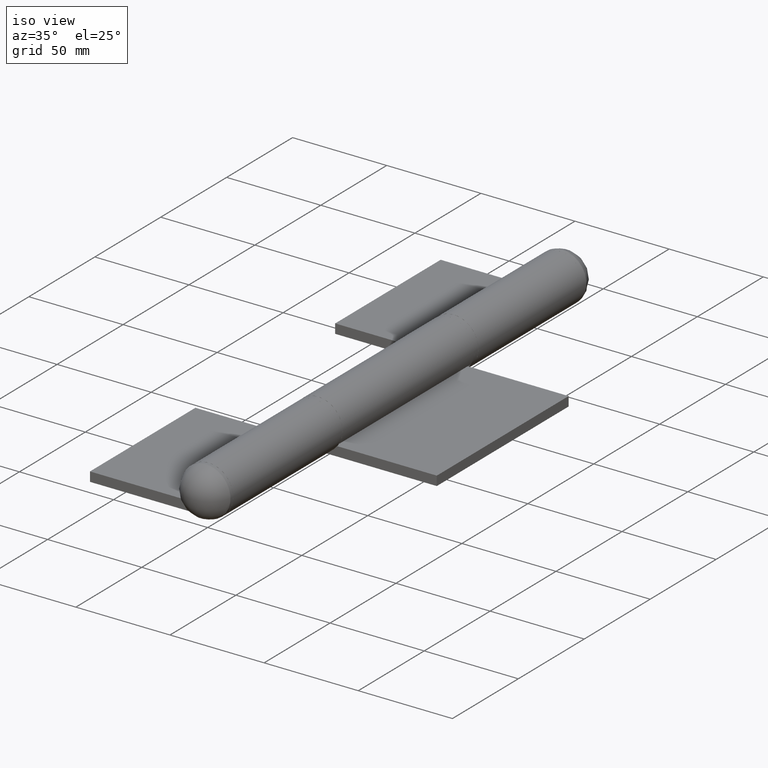
[diagram: clean part render]
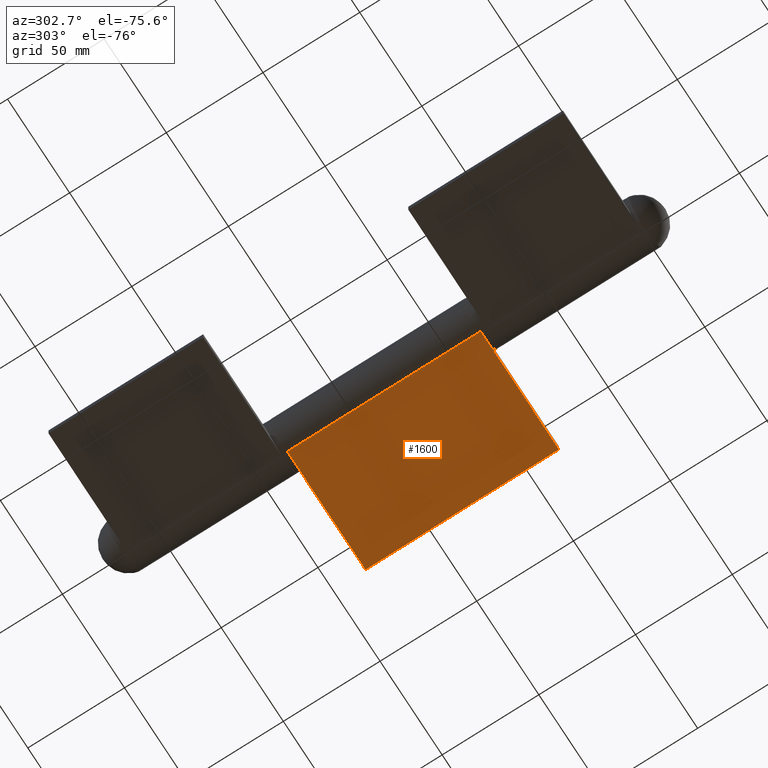
[diagram: tour spotlight — one face highlighted and labeled with its STEP entity id]
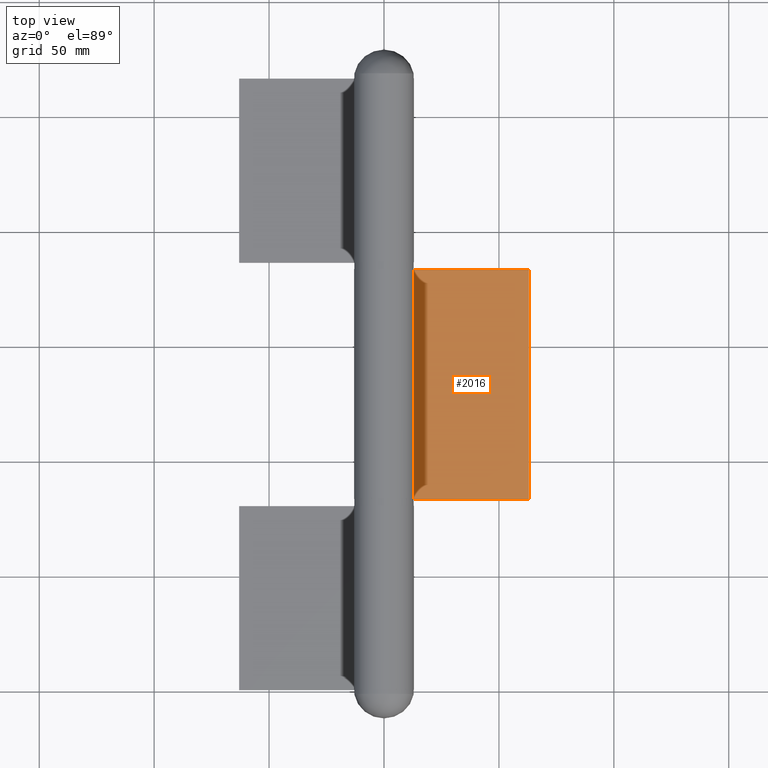
[diagram: tour spotlight — one face highlighted and labeled with its STEP entity id]
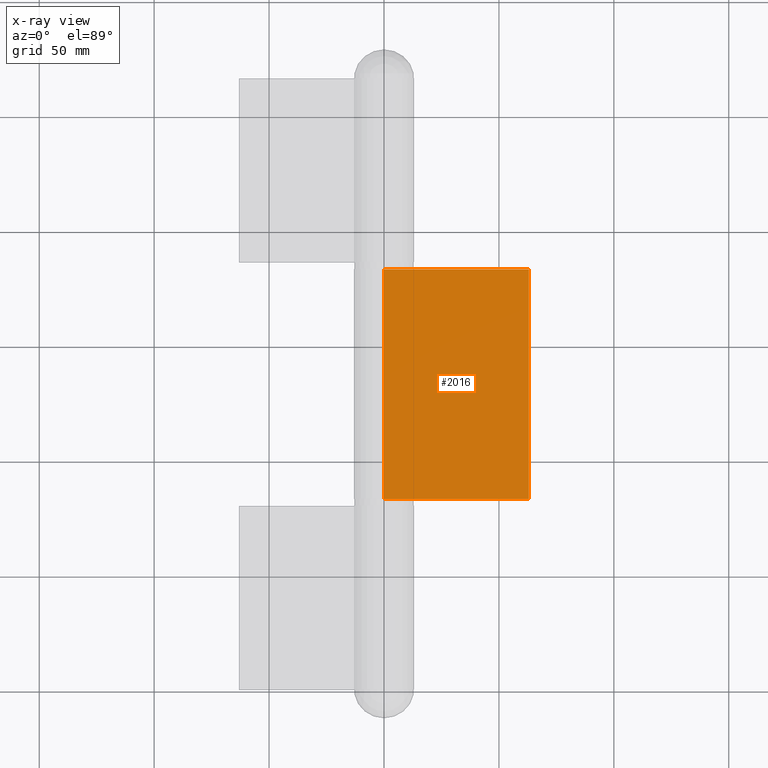
[diagram: x-ray of the same camera — body ghosted, this tour face saturated]
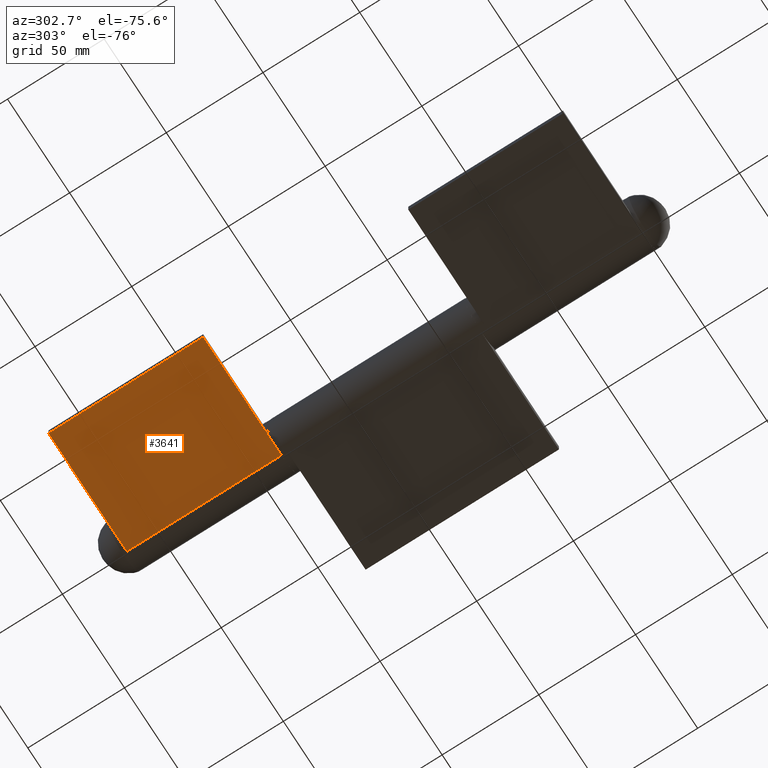
[diagram: tour spotlight — one face highlighted and labeled with its STEP entity id]
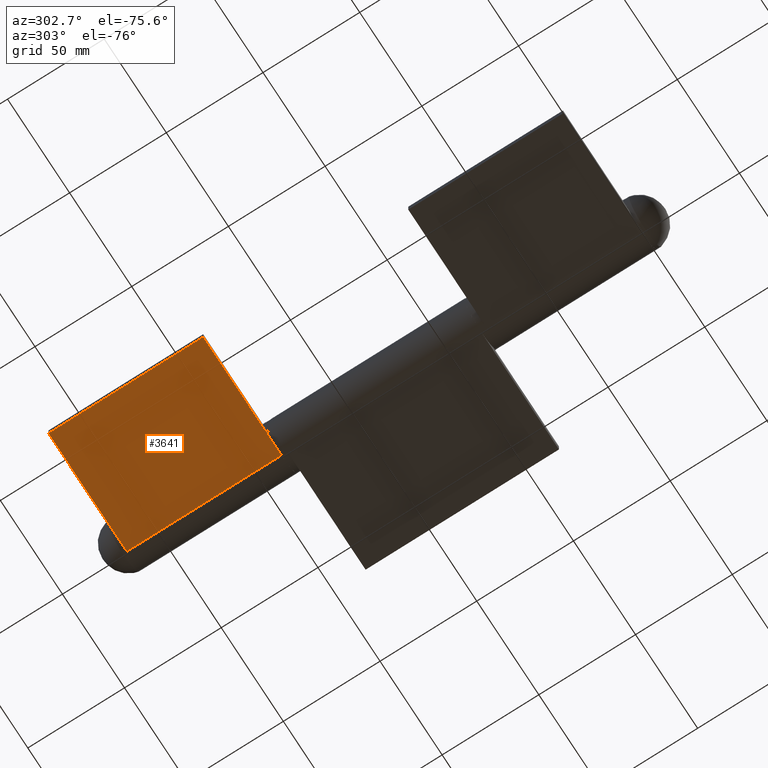
[diagram: tour spotlight — one face highlighted and labeled with its STEP entity id]
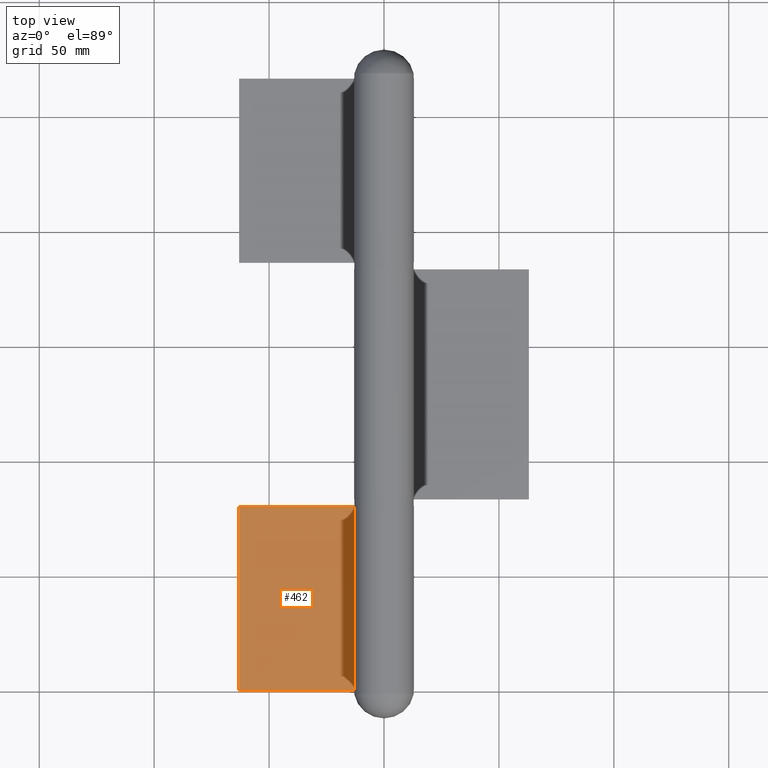
[diagram: tour spotlight — one face highlighted and labeled with its STEP entity id]
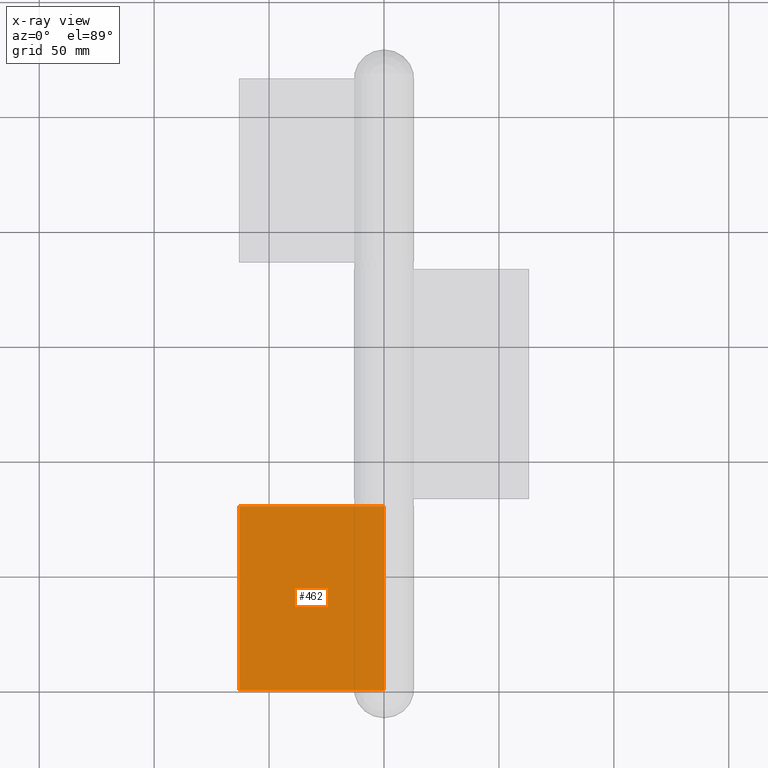
[diagram: x-ray of the same camera — body ghosted, this tour face saturated]
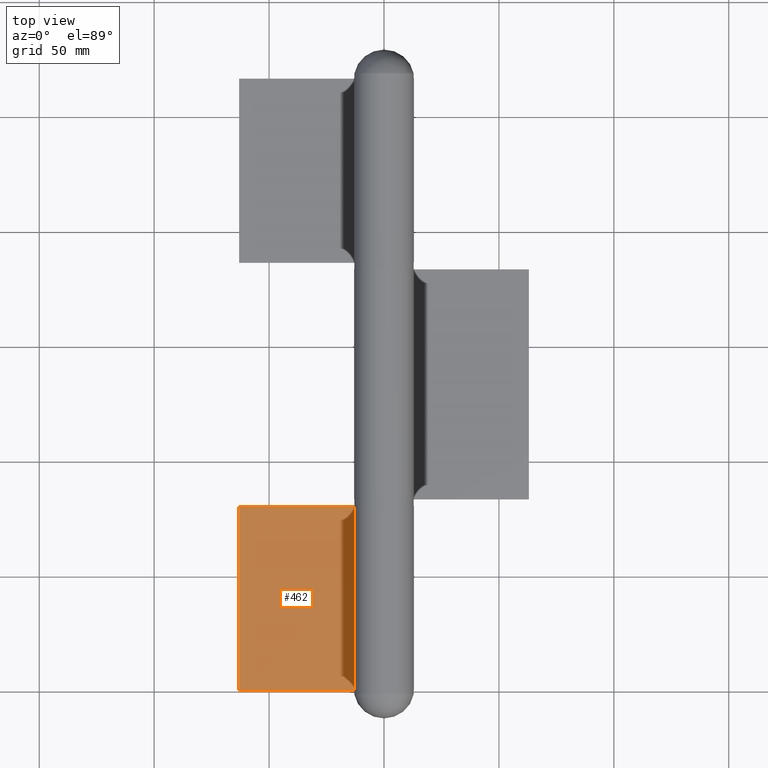
[diagram: tour spotlight — one face highlighted and labeled with its STEP entity id]
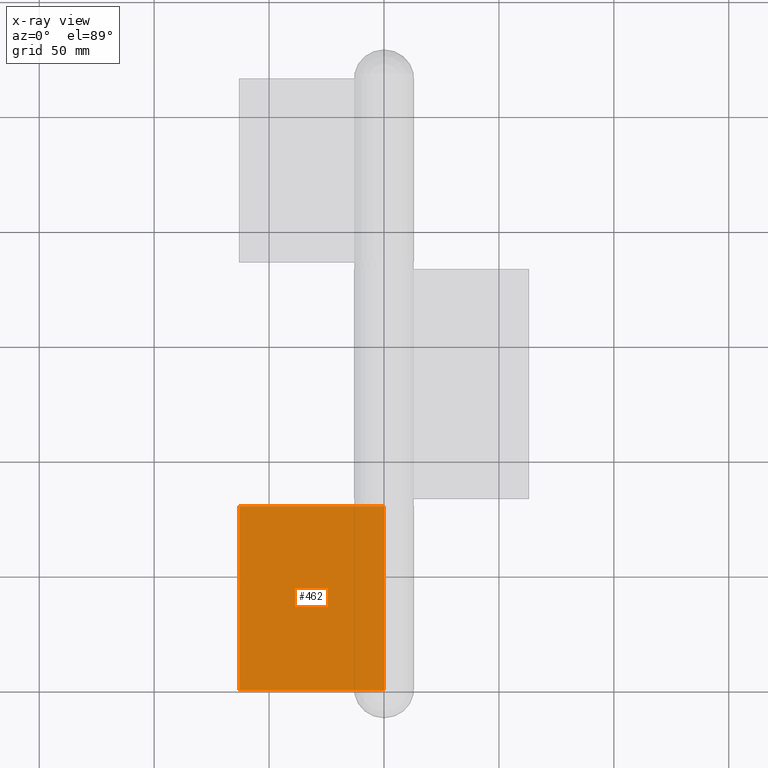
[diagram: x-ray of the same camera — body ghosted, this tour face saturated]
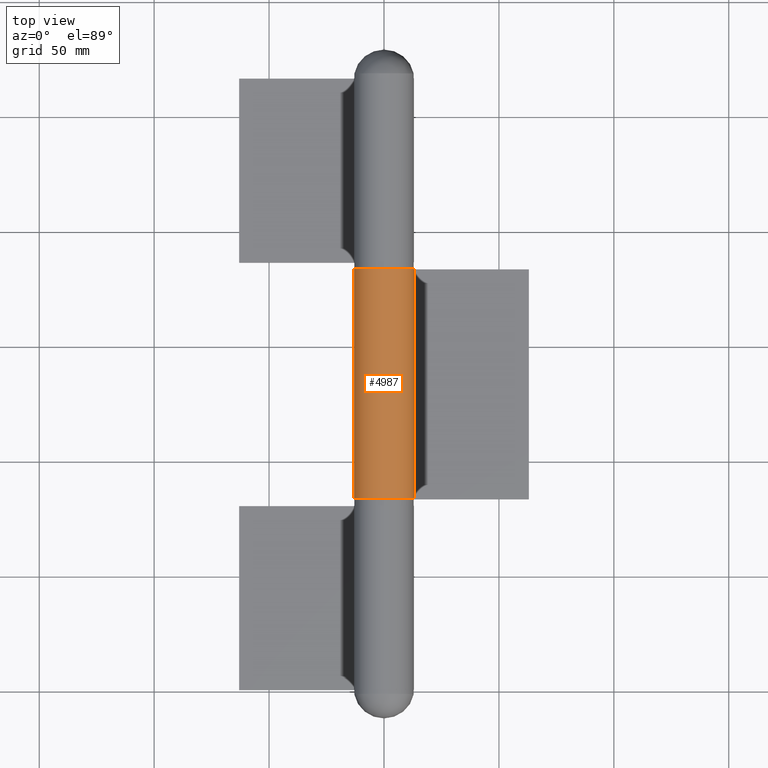
[diagram: tour spotlight — one face highlighted and labeled with its STEP entity id]
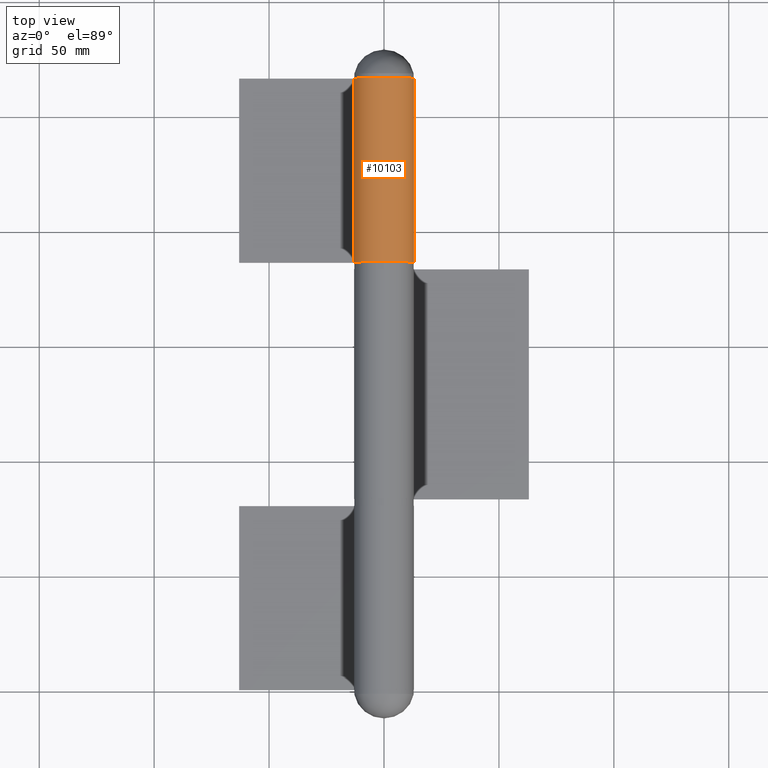
[diagram: tour spotlight — one face highlighted and labeled with its STEP entity id]
A machine part: a face-by-face anatomy tour. The part has 240 B-rep faces; the first image is the clean iso view, then the 8 largest visible faces are spotlighted one at a time (largest first), each with its STEP entity span.

Face 1 — auxiliary view, entity #1600. In plain terms, the highlighted planar face has unit normal (0, 0, 1).
Definition (entity closure, byte-faithful):
#174 = LINE ( 'NONE', #11768, #3466 ) ;
#405 = EDGE_CURVE ( 'NONE', #10085, #7426, #174, .T. ) ;
#1163 = EDGE_CURVE ( 'NONE', #3037, #7426, #4972, .T. ) ;
#1315 = CARTESIAN_POINT ( 'NONE',  ( -13.04999999999999893, -50.00000000000000000, 63.04500000000000171 ) ) ;
#1457 = CARTESIAN_POINT ( 'NONE',  ( -13.04999999999999893, 50.00000000000000000, 63.04500000000000171 ) ) ;
#1600 = ADVANCED_FACE ( 'NONE', ( #4656 ), #8388, .F. ) ;
#2257 = EDGE_CURVE ( 'NONE', #10247, #3037, #4169, .T. ) ;
#2359 = DIRECTION ( 'NONE',  ( 1.000000000000000000, -0.000000000000000000, 0.000000000000000000 ) ) ;
#2395 = ORIENTED_EDGE ( 'NONE', *, *, #12080, .F. ) ;
#2402 = DIRECTION ( 'NONE',  ( 0.000000000000000000, 0.000000000000000000, -1.000000000000000000 ) ) ;
#2403 = EDGE_LOOP ( 'NONE', ( #8360, #3522, #2395, #11698 ) ) ;
#3037 = VERTEX_POINT ( 'NONE', #9105 ) ;
#3060 = CARTESIAN_POINT ( 'NONE',  ( -13.04999999999999893, 50.00000000000000000, 63.04500000000000171 ) ) ;
#3466 = VECTOR ( 'NONE', #5829, 1000.000000000000000 ) ;
#3522 = ORIENTED_EDGE ( 'NONE', *, *, #405, .F. ) ;
#4169 = LINE ( 'NONE', #12981, #9027 ) ;
#4656 = FACE_OUTER_BOUND ( 'NONE', #2403, .T. ) ;
#4972 = LINE ( 'NONE', #10637, #11692 ) ;
#4979 = DIRECTION ( 'NONE',  ( -0.000000000000000000, -0.000000000000000000, 1.000000000000000000 ) ) ;
#5829 = DIRECTION ( 'NONE',  ( -0.000000000000000000, -1.000000000000000000, -0.000000000000000000 ) ) ;
#6665 = DIRECTION ( 'NONE',  ( -0.000000000000000000, -0.000000000000000000, 1.000000000000000000 ) ) ;
#7026 = LINE ( 'NONE', #3060, #8448 ) ;
#7426 = VERTEX_POINT ( 'NONE', #1315 ) ;
#7855 = CARTESIAN_POINT ( 'NONE',  ( -13.04999999999999893, 50.00000000000000000, 63.04500000000000171 ) ) ;
#8360 = ORIENTED_EDGE ( 'NONE', *, *, #1163, .T. ) ;
#8388 = PLANE ( 'NONE',  #9549 ) ;
#8448 = VECTOR ( 'NONE', #4979, 1000.000000000000000 ) ;
#9027 = VECTOR ( 'NONE', #11020, 1000.000000000000000 ) ;
#9105 = CARTESIAN_POINT ( 'NONE',  ( -13.04999999999999716, -50.00000000000000000, 2.397246109330944548E-15 ) ) ;
#9549 = AXIS2_PLACEMENT_3D ( 'NONE', #1457, #2359, #2402 ) ;
#10085 = VERTEX_POINT ( 'NONE', #7855 ) ;
#10247 = VERTEX_POINT ( 'NONE', #12008 ) ;
#10637 = CARTESIAN_POINT ( 'NONE',  ( -13.04999999999999893, -50.00000000000000000, 63.04500000000000171 ) ) ;
#11020 = DIRECTION ( 'NONE',  ( -0.000000000000000000, -1.000000000000000000, -0.000000000000000000 ) ) ;
#11692 = VECTOR ( 'NONE', #6665, 1000.000000000000000 ) ;
#11698 = ORIENTED_EDGE ( 'NONE', *, *, #2257, .T. ) ;
#11768 = CARTESIAN_POINT ( 'NONE',  ( -13.04999999999999893, 50.00000000000000000, 63.04500000000000171 ) ) ;
#12008 = CARTESIAN_POINT ( 'NONE',  ( -13.04999999999999716, 50.00000000000000000, 2.397246109330944548E-15 ) ) ;
#12080 = EDGE_CURVE ( 'NONE', #10247, #10085, #7026, .T. ) ;
#12981 = CARTESIAN_POINT ( 'NONE',  ( -13.04999999999999716, 50.00000000000000000, 2.397246109330944548E-15 ) ) ;

Face 2 — top view, entity #2016. An x-ray twin of the same camera follows (body ghosted, this face saturated) — the face is partly hidden behind the body. In plain terms, the highlighted planar face has unit normal (-0, 0, -1).
Definition (entity closure, byte-faithful):
#271 = CARTESIAN_POINT ( 'NONE',  ( -8.050000000000000711, 50.00000000000000000, 63.04500000000000171 ) ) ;
#288 = CARTESIAN_POINT ( 'NONE',  ( -8.050000000000000711, 50.00000000000000000, 63.04500000000000171 ) ) ;
#1965 = VECTOR ( 'NONE', #9721, 1000.000000000000000 ) ;
#2016 = ADVANCED_FACE ( 'NONE', ( #12936 ), #6175, .F. ) ;
#2370 = CARTESIAN_POINT ( 'NONE',  ( -8.050000000000000711, 50.00000000000000000, 63.04500000000000171 ) ) ;
#2412 = CARTESIAN_POINT ( 'NONE',  ( -8.050000000000000711, -50.00000000000000000, 63.04500000000000171 ) ) ;
#2430 = EDGE_CURVE ( 'NONE', #2880, #11786, #8559, .T. ) ;
#2880 = VERTEX_POINT ( 'NONE', #4066 ) ;
#3029 = ORIENTED_EDGE ( 'NONE', *, *, #7020, .T. ) ;
#3373 = VERTEX_POINT ( 'NONE', #5293 ) ;
#4066 = CARTESIAN_POINT ( 'NONE',  ( -8.050000000000000711, 50.00000000000000000, 0.000000000000000000 ) ) ;
#4278 = ORIENTED_EDGE ( 'NONE', *, *, #8578, .T. ) ;
#4675 = CARTESIAN_POINT ( 'NONE',  ( -8.050000000000000711, 50.00000000000000000, 0.000000000000000000 ) ) ;
#4895 = LINE ( 'NONE', #2370, #9442 ) ;
#5090 = LINE ( 'NONE', #9436, #11802 ) ;
#5113 = CARTESIAN_POINT ( 'NONE',  ( -8.050000000000000711, -50.00000000000000000, 0.000000000000000000 ) ) ;
#5144 = DIRECTION ( 'NONE',  ( 0.000000000000000000, 0.000000000000000000, 1.000000000000000000 ) ) ;
#5293 = CARTESIAN_POINT ( 'NONE',  ( -8.050000000000000711, -50.00000000000000000, 63.04500000000000171 ) ) ;
#5861 = LINE ( 'NONE', #2412, #12575 ) ;
#5906 = EDGE_CURVE ( 'NONE', #7452, #2880, #5090, .T. ) ;
#6175 = PLANE ( 'NONE',  #8361 ) ;
#6382 = DIRECTION ( 'NONE',  ( -0.000000000000000000, -1.000000000000000000, -0.000000000000000000 ) ) ;
#7020 = EDGE_CURVE ( 'NONE', #3373, #11786, #5861, .T. ) ;
#7452 = VERTEX_POINT ( 'NONE', #271 ) ;
#7910 = EDGE_LOOP ( 'NONE', ( #3029, #10391, #9989, #4278 ) ) ;
#8361 = AXIS2_PLACEMENT_3D ( 'NONE', #288, #9342, #5144 ) ;
#8559 = LINE ( 'NONE', #4675, #1965 ) ;
#8578 = EDGE_CURVE ( 'NONE', #7452, #3373, #4895, .T. ) ;
#9342 = DIRECTION ( 'NONE',  ( -1.000000000000000000, 0.000000000000000000, 0.000000000000000000 ) ) ;
#9436 = CARTESIAN_POINT ( 'NONE',  ( -8.050000000000000711, 50.00000000000000000, 63.04500000000000171 ) ) ;
#9442 = VECTOR ( 'NONE', #6382, 1000.000000000000000 ) ;
#9721 = DIRECTION ( 'NONE',  ( -0.000000000000000000, -1.000000000000000000, -0.000000000000000000 ) ) ;
#9989 = ORIENTED_EDGE ( 'NONE', *, *, #5906, .F. ) ;
#10391 = ORIENTED_EDGE ( 'NONE', *, *, #2430, .F. ) ;
#11138 = DIRECTION ( 'NONE',  ( 0.000000000000000000, 0.000000000000000000, -1.000000000000000000 ) ) ;
#11786 = VERTEX_POINT ( 'NONE', #5113 ) ;
#11802 = VECTOR ( 'NONE', #12201, 1000.000000000000000 ) ;
#12201 = DIRECTION ( 'NONE',  ( 0.000000000000000000, 0.000000000000000000, -1.000000000000000000 ) ) ;
#12575 = VECTOR ( 'NONE', #11138, 1000.000000000000000 ) ;
#12936 = FACE_OUTER_BOUND ( 'NONE', #7910, .T. ) ;

Face 3 — auxiliary view, entity #3641. In plain terms, the highlighted planar face has unit normal (0, 0, 1).
Definition (entity closure, byte-faithful):
#371 = FACE_OUTER_BOUND ( 'NONE', #4788, .T. ) ;
#692 = CARTESIAN_POINT ( 'NONE',  ( -13.04999999999999893, 40.00000000000000000, 63.04500000000000171 ) ) ;
#930 = VECTOR ( 'NONE', #10664, 1000.000000000000000 ) ;
#1616 = CARTESIAN_POINT ( 'NONE',  ( -13.04999999999999716, 40.00000000000000000, 2.397246109330944548E-15 ) ) ;
#1867 = CARTESIAN_POINT ( 'NONE',  ( -13.04999999999999893, 40.00000000000000000, 63.04500000000000171 ) ) ;
#2119 = EDGE_CURVE ( 'NONE', #10095, #11537, #11210, .T. ) ;
#2292 = ORIENTED_EDGE ( 'NONE', *, *, #10957, .T. ) ;
#2751 = CARTESIAN_POINT ( 'NONE',  ( -13.04999999999999893, -40.00000000000000000, 63.04500000000000171 ) ) ;
#3162 = VECTOR ( 'NONE', #5810, 1000.000000000000000 ) ;
#3215 = DIRECTION ( 'NONE',  ( -0.000000000000000000, -1.000000000000000000, -0.000000000000000000 ) ) ;
#3251 = DIRECTION ( 'NONE',  ( 0.000000000000000000, 0.000000000000000000, -1.000000000000000000 ) ) ;
#3641 = ADVANCED_FACE ( 'NONE', ( #371 ), #8215, .F. ) ;
#3722 = DIRECTION ( 'NONE',  ( -0.000000000000000000, -1.000000000000000000, -0.000000000000000000 ) ) ;
#3914 = CARTESIAN_POINT ( 'NONE',  ( -13.04999999999999893, 40.00000000000000000, 63.04500000000000171 ) ) ;
#4788 = EDGE_LOOP ( 'NONE', ( #2292, #8394, #7740, #4924 ) ) ;
#4924 = ORIENTED_EDGE ( 'NONE', *, *, #8585, .T. ) ;
#5701 = LINE ( 'NONE', #3914, #3162 ) ;
#5810 = DIRECTION ( 'NONE',  ( -0.000000000000000000, -0.000000000000000000, 1.000000000000000000 ) ) ;
#7145 = EDGE_CURVE ( 'NONE', #8344, #10095, #5701, .T. ) ;
#7197 = CARTESIAN_POINT ( 'NONE',  ( -13.04999999999999716, 40.00000000000000000, 2.397246109330944548E-15 ) ) ;
#7279 = VERTEX_POINT ( 'NONE', #10967 ) ;
#7418 = CARTESIAN_POINT ( 'NONE',  ( -13.04999999999999893, 40.00000000000000000, 63.04500000000000171 ) ) ;
#7459 = CARTESIAN_POINT ( 'NONE',  ( -13.04999999999999893, -40.00000000000000000, 63.04500000000000171 ) ) ;
#7511 = LINE ( 'NONE', #2751, #930 ) ;
#7740 = ORIENTED_EDGE ( 'NONE', *, *, #7145, .F. ) ;
#8215 = PLANE ( 'NONE',  #11635 ) ;
#8344 = VERTEX_POINT ( 'NONE', #1616 ) ;
#8394 = ORIENTED_EDGE ( 'NONE', *, *, #2119, .F. ) ;
#8585 = EDGE_CURVE ( 'NONE', #8344, #7279, #10068, .T. ) ;
#10068 = LINE ( 'NONE', #7197, #11143 ) ;
#10095 = VERTEX_POINT ( 'NONE', #1867 ) ;
#10664 = DIRECTION ( 'NONE',  ( -0.000000000000000000, -0.000000000000000000, 1.000000000000000000 ) ) ;
#10957 = EDGE_CURVE ( 'NONE', #7279, #11537, #7511, .T. ) ;
#10967 = CARTESIAN_POINT ( 'NONE',  ( -13.04999999999999716, -40.00000000000000000, 2.397246109330944548E-15 ) ) ;
#11143 = VECTOR ( 'NONE', #3215, 1000.000000000000000 ) ;
#11210 = LINE ( 'NONE', #692, #11353 ) ;
#11353 = VECTOR ( 'NONE', #3722, 1000.000000000000000 ) ;
#11362 = DIRECTION ( 'NONE',  ( 1.000000000000000000, -0.000000000000000000, 0.000000000000000000 ) ) ;
#11537 = VERTEX_POINT ( 'NONE', #7459 ) ;
#11635 = AXIS2_PLACEMENT_3D ( 'NONE', #7418, #11362, #3251 ) ;

Face 4 — auxiliary view, entity #3641. In plain terms, the highlighted planar face has unit normal (0, 0, 1).
Definition (entity closure, byte-faithful):
#371 = FACE_OUTER_BOUND ( 'NONE', #4788, .T. ) ;
#692 = CARTESIAN_POINT ( 'NONE',  ( -13.04999999999999893, 40.00000000000000000, 63.04500000000000171 ) ) ;
#930 = VECTOR ( 'NONE', #10664, 1000.000000000000000 ) ;
#1616 = CARTESIAN_POINT ( 'NONE',  ( -13.04999999999999716, 40.00000000000000000, 2.397246109330944548E-15 ) ) ;
#1867 = CARTESIAN_POINT ( 'NONE',  ( -13.04999999999999893, 40.00000000000000000, 63.04500000000000171 ) ) ;
#2119 = EDGE_CURVE ( 'NONE', #10095, #11537, #11210, .T. ) ;
#2292 = ORIENTED_EDGE ( 'NONE', *, *, #10957, .T. ) ;
#2751 = CARTESIAN_POINT ( 'NONE',  ( -13.04999999999999893, -40.00000000000000000, 63.04500000000000171 ) ) ;
#3162 = VECTOR ( 'NONE', #5810, 1000.000000000000000 ) ;
#3215 = DIRECTION ( 'NONE',  ( -0.000000000000000000, -1.000000000000000000, -0.000000000000000000 ) ) ;
#3251 = DIRECTION ( 'NONE',  ( 0.000000000000000000, 0.000000000000000000, -1.000000000000000000 ) ) ;
#3641 = ADVANCED_FACE ( 'NONE', ( #371 ), #8215, .F. ) ;
#3722 = DIRECTION ( 'NONE',  ( -0.000000000000000000, -1.000000000000000000, -0.000000000000000000 ) ) ;
#3914 = CARTESIAN_POINT ( 'NONE',  ( -13.04999999999999893, 40.00000000000000000, 63.04500000000000171 ) ) ;
#4788 = EDGE_LOOP ( 'NONE', ( #2292, #8394, #7740, #4924 ) ) ;
#4924 = ORIENTED_EDGE ( 'NONE', *, *, #8585, .T. ) ;
#5701 = LINE ( 'NONE', #3914, #3162 ) ;
#5810 = DIRECTION ( 'NONE',  ( -0.000000000000000000, -0.000000000000000000, 1.000000000000000000 ) ) ;
#7145 = EDGE_CURVE ( 'NONE', #8344, #10095, #5701, .T. ) ;
#7197 = CARTESIAN_POINT ( 'NONE',  ( -13.04999999999999716, 40.00000000000000000, 2.397246109330944548E-15 ) ) ;
#7279 = VERTEX_POINT ( 'NONE', #10967 ) ;
#7418 = CARTESIAN_POINT ( 'NONE',  ( -13.04999999999999893, 40.00000000000000000, 63.04500000000000171 ) ) ;
#7459 = CARTESIAN_POINT ( 'NONE',  ( -13.04999999999999893, -40.00000000000000000, 63.04500000000000171 ) ) ;
#7511 = LINE ( 'NONE', #2751, #930 ) ;
#7740 = ORIENTED_EDGE ( 'NONE', *, *, #7145, .F. ) ;
#8215 = PLANE ( 'NONE',  #11635 ) ;
#8344 = VERTEX_POINT ( 'NONE', #1616 ) ;
#8394 = ORIENTED_EDGE ( 'NONE', *, *, #2119, .F. ) ;
#8585 = EDGE_CURVE ( 'NONE', #8344, #7279, #10068, .T. ) ;
#10068 = LINE ( 'NONE', #7197, #11143 ) ;
#10095 = VERTEX_POINT ( 'NONE', #1867 ) ;
#10664 = DIRECTION ( 'NONE',  ( -0.000000000000000000, -0.000000000000000000, 1.000000000000000000 ) ) ;
#10957 = EDGE_CURVE ( 'NONE', #7279, #11537, #7511, .T. ) ;
#10967 = CARTESIAN_POINT ( 'NONE',  ( -13.04999999999999716, -40.00000000000000000, 2.397246109330944548E-15 ) ) ;
#11143 = VECTOR ( 'NONE', #3215, 1000.000000000000000 ) ;
#11210 = LINE ( 'NONE', #692, #11353 ) ;
#11353 = VECTOR ( 'NONE', #3722, 1000.000000000000000 ) ;
#11362 = DIRECTION ( 'NONE',  ( 1.000000000000000000, -0.000000000000000000, 0.000000000000000000 ) ) ;
#11537 = VERTEX_POINT ( 'NONE', #7459 ) ;
#11635 = AXIS2_PLACEMENT_3D ( 'NONE', #7418, #11362, #3251 ) ;

Face 5 — top view, entity #462. An x-ray twin of the same camera follows (body ghosted, this face saturated) — the face is partly hidden behind the body. In plain terms, the highlighted planar face has unit normal (0, 0, -1).
Definition (entity closure, byte-faithful):
#89 = DIRECTION ( 'NONE',  ( -0.000000000000000000, -1.000000000000000000, -0.000000000000000000 ) ) ;
#325 = FACE_OUTER_BOUND ( 'NONE', #7902, .T. ) ;
#462 = ADVANCED_FACE ( 'NONE', ( #325 ), #5673, .F. ) ;
#496 = EDGE_CURVE ( 'NONE', #6351, #8079, #5222, .T. ) ;
#1579 = CARTESIAN_POINT ( 'NONE',  ( -8.050000000000000711, 40.00000000000000000, 63.04500000000000171 ) ) ;
#1713 = CARTESIAN_POINT ( 'NONE',  ( -8.050000000000000711, 40.00000000000000000, 63.04500000000000171 ) ) ;
#2371 = EDGE_CURVE ( 'NONE', #8079, #8602, #10765, .T. ) ;
#2581 = VECTOR ( 'NONE', #12172, 1000.000000000000000 ) ;
#4161 = VERTEX_POINT ( 'NONE', #7971 ) ;
#4549 = VECTOR ( 'NONE', #6650, 1000.000000000000000 ) ;
#5222 = LINE ( 'NONE', #1713, #8966 ) ;
#5593 = DIRECTION ( 'NONE',  ( -0.000000000000000000, -1.000000000000000000, -0.000000000000000000 ) ) ;
#5661 = CARTESIAN_POINT ( 'NONE',  ( -8.050000000000000711, 40.00000000000000000, 63.04500000000000171 ) ) ;
#5673 = PLANE ( 'NONE',  #10539 ) ;
#5703 = EDGE_CURVE ( 'NONE', #4161, #8602, #10244, .T. ) ;
#5759 = ORIENTED_EDGE ( 'NONE', *, *, #5703, .F. ) ;
#5883 = ORIENTED_EDGE ( 'NONE', *, *, #2371, .T. ) ;
#6189 = CARTESIAN_POINT ( 'NONE',  ( -8.050000000000000711, 40.00000000000000000, 0.000000000000000000 ) ) ;
#6260 = CARTESIAN_POINT ( 'NONE',  ( -8.050000000000000711, -40.00000000000000000, 63.04500000000000171 ) ) ;
#6351 = VERTEX_POINT ( 'NONE', #12996 ) ;
#6650 = DIRECTION ( 'NONE',  ( 0.000000000000000000, 0.000000000000000000, -1.000000000000000000 ) ) ;
#6729 = LINE ( 'NONE', #5661, #4549 ) ;
#7370 = CARTESIAN_POINT ( 'NONE',  ( -8.050000000000000711, -40.00000000000000000, 0.000000000000000000 ) ) ;
#7559 = VECTOR ( 'NONE', #89, 1000.000000000000000 ) ;
#7753 = ORIENTED_EDGE ( 'NONE', *, *, #11009, .F. ) ;
#7902 = EDGE_LOOP ( 'NONE', ( #5883, #5759, #7753, #12875 ) ) ;
#7971 = CARTESIAN_POINT ( 'NONE',  ( -8.050000000000000711, 40.00000000000000000, 0.000000000000000000 ) ) ;
#8079 = VERTEX_POINT ( 'NONE', #6260 ) ;
#8602 = VERTEX_POINT ( 'NONE', #7370 ) ;
#8966 = VECTOR ( 'NONE', #5593, 1000.000000000000000 ) ;
#10244 = LINE ( 'NONE', #6189, #7559 ) ;
#10368 = CARTESIAN_POINT ( 'NONE',  ( -8.050000000000000711, -40.00000000000000000, 63.04500000000000171 ) ) ;
#10539 = AXIS2_PLACEMENT_3D ( 'NONE', #1579, #10773, #12699 ) ;
#10765 = LINE ( 'NONE', #10368, #2581 ) ;
#10773 = DIRECTION ( 'NONE',  ( -1.000000000000000000, 0.000000000000000000, 0.000000000000000000 ) ) ;
#11009 = EDGE_CURVE ( 'NONE', #6351, #4161, #6729, .T. ) ;
#12172 = DIRECTION ( 'NONE',  ( 0.000000000000000000, 0.000000000000000000, -1.000000000000000000 ) ) ;
#12699 = DIRECTION ( 'NONE',  ( 0.000000000000000000, 0.000000000000000000, 1.000000000000000000 ) ) ;
#12875 = ORIENTED_EDGE ( 'NONE', *, *, #496, .T. ) ;
#12996 = CARTESIAN_POINT ( 'NONE',  ( -8.050000000000000711, 40.00000000000000000, 63.04500000000000171 ) ) ;

Face 6 — top view, entity #462. An x-ray twin of the same camera follows (body ghosted, this face saturated) — the face is partly hidden behind the body. In plain terms, the highlighted planar face has unit normal (-0, 0, -1).
Definition (entity closure, byte-faithful):
#89 = DIRECTION ( 'NONE',  ( -0.000000000000000000, -1.000000000000000000, -0.000000000000000000 ) ) ;
#325 = FACE_OUTER_BOUND ( 'NONE', #7902, .T. ) ;
#462 = ADVANCED_FACE ( 'NONE', ( #325 ), #5673, .F. ) ;
#496 = EDGE_CURVE ( 'NONE', #6351, #8079, #5222, .T. ) ;
#1579 = CARTESIAN_POINT ( 'NONE',  ( -8.050000000000000711, 40.00000000000000000, 63.04500000000000171 ) ) ;
#1713 = CARTESIAN_POINT ( 'NONE',  ( -8.050000000000000711, 40.00000000000000000, 63.04500000000000171 ) ) ;
#2371 = EDGE_CURVE ( 'NONE', #8079, #8602, #10765, .T. ) ;
#2581 = VECTOR ( 'NONE', #12172, 1000.000000000000000 ) ;
#4161 = VERTEX_POINT ( 'NONE', #7971 ) ;
#4549 = VECTOR ( 'NONE', #6650, 1000.000000000000000 ) ;
#5222 = LINE ( 'NONE', #1713, #8966 ) ;
#5593 = DIRECTION ( 'NONE',  ( -0.000000000000000000, -1.000000000000000000, -0.000000000000000000 ) ) ;
#5661 = CARTESIAN_POINT ( 'NONE',  ( -8.050000000000000711, 40.00000000000000000, 63.04500000000000171 ) ) ;
#5673 = PLANE ( 'NONE',  #10539 ) ;
#5703 = EDGE_CURVE ( 'NONE', #4161, #8602, #10244, .T. ) ;
#5759 = ORIENTED_EDGE ( 'NONE', *, *, #5703, .F. ) ;
#5883 = ORIENTED_EDGE ( 'NONE', *, *, #2371, .T. ) ;
#6189 = CARTESIAN_POINT ( 'NONE',  ( -8.050000000000000711, 40.00000000000000000, 0.000000000000000000 ) ) ;
#6260 = CARTESIAN_POINT ( 'NONE',  ( -8.050000000000000711, -40.00000000000000000, 63.04500000000000171 ) ) ;
#6351 = VERTEX_POINT ( 'NONE', #12996 ) ;
#6650 = DIRECTION ( 'NONE',  ( 0.000000000000000000, 0.000000000000000000, -1.000000000000000000 ) ) ;
#6729 = LINE ( 'NONE', #5661, #4549 ) ;
#7370 = CARTESIAN_POINT ( 'NONE',  ( -8.050000000000000711, -40.00000000000000000, 0.000000000000000000 ) ) ;
#7559 = VECTOR ( 'NONE', #89, 1000.000000000000000 ) ;
#7753 = ORIENTED_EDGE ( 'NONE', *, *, #11009, .F. ) ;
#7902 = EDGE_LOOP ( 'NONE', ( #5883, #5759, #7753, #12875 ) ) ;
#7971 = CARTESIAN_POINT ( 'NONE',  ( -8.050000000000000711, 40.00000000000000000, 0.000000000000000000 ) ) ;
#8079 = VERTEX_POINT ( 'NONE', #6260 ) ;
#8602 = VERTEX_POINT ( 'NONE', #7370 ) ;
#8966 = VECTOR ( 'NONE', #5593, 1000.000000000000000 ) ;
#10244 = LINE ( 'NONE', #6189, #7559 ) ;
#10368 = CARTESIAN_POINT ( 'NONE',  ( -8.050000000000000711, -40.00000000000000000, 63.04500000000000171 ) ) ;
#10539 = AXIS2_PLACEMENT_3D ( 'NONE', #1579, #10773, #12699 ) ;
#10765 = LINE ( 'NONE', #10368, #2581 ) ;
#10773 = DIRECTION ( 'NONE',  ( -1.000000000000000000, 0.000000000000000000, 0.000000000000000000 ) ) ;
#11009 = EDGE_CURVE ( 'NONE', #6351, #4161, #6729, .T. ) ;
#12172 = DIRECTION ( 'NONE',  ( 0.000000000000000000, 0.000000000000000000, -1.000000000000000000 ) ) ;
#12699 = DIRECTION ( 'NONE',  ( 0.000000000000000000, 0.000000000000000000, 1.000000000000000000 ) ) ;
#12875 = ORIENTED_EDGE ( 'NONE', *, *, #496, .T. ) ;
#12996 = CARTESIAN_POINT ( 'NONE',  ( -8.050000000000000711, 40.00000000000000000, 63.04500000000000171 ) ) ;

Face 7 — top view, entity #4987. In plain terms, the highlighted cylindrical surface (edge-blend (fillet) strip) has radius 13.05 mm, axis along (-0, 1, 0).
Definition (entity closure, byte-faithful):
#276 = CIRCLE ( 'NONE', #955, 13.05000000000000604 ) ;
#495 = DIRECTION ( 'NONE',  ( 0.000000000000000000, 0.000000000000000000, -1.000000000000000000 ) ) ;
#693 = EDGE_CURVE ( 'NONE', #2579, #10247, #2673, .T. ) ;
#955 = AXIS2_PLACEMENT_3D ( 'NONE', #1992, #6929, #8842 ) ;
#1464 = CARTESIAN_POINT ( 'NONE',  ( -6.550000000000000711, -50.00000000000000000, 11.28716084761796701 ) ) ;
#1992 = CARTESIAN_POINT ( 'NONE',  ( 8.673617379884035472E-15, -50.00000000000000000, 0.000000000000000000 ) ) ;
#2257 = EDGE_CURVE ( 'NONE', #10247, #3037, #4169, .T. ) ;
#2579 = VERTEX_POINT ( 'NONE', #6186 ) ;
#2673 = CIRCLE ( 'NONE', #2877, 13.05000000000000604 ) ;
#2877 = AXIS2_PLACEMENT_3D ( 'NONE', #3565, #6542, #495 ) ;
#3014 = FACE_OUTER_BOUND ( 'NONE', #4314, .T. ) ;
#3037 = VERTEX_POINT ( 'NONE', #9105 ) ;
#3421 = DIRECTION ( 'NONE',  ( -0.000000000000000000, -1.000000000000000000, -0.000000000000000000 ) ) ;
#3565 = CARTESIAN_POINT ( 'NONE',  ( 8.673617379884035472E-15, 50.00000000000000000, 0.000000000000000000 ) ) ;
#3776 = EDGE_CURVE ( 'NONE', #2579, #8715, #12429, .T. ) ;
#3980 = ORIENTED_EDGE ( 'NONE', *, *, #693, .F. ) ;
#4169 = LINE ( 'NONE', #12981, #9027 ) ;
#4314 = EDGE_LOOP ( 'NONE', ( #4951, #10112, #3980, #5585 ) ) ;
#4321 = CARTESIAN_POINT ( 'NONE',  ( -6.550000000000000711, 50.00000000000000000, 11.28716084761796701 ) ) ;
#4951 = ORIENTED_EDGE ( 'NONE', *, *, #13009, .T. ) ;
#4987 = ADVANCED_FACE ( 'NONE', ( #3014 ), #5713, .T. ) ;
#5430 = DIRECTION ( 'NONE',  ( 0.000000000000000000, 0.000000000000000000, -1.000000000000000000 ) ) ;
#5585 = ORIENTED_EDGE ( 'NONE', *, *, #3776, .T. ) ;
#5713 = CYLINDRICAL_SURFACE ( 'NONE', #7043, 13.05000000000000604 ) ;
#6186 = CARTESIAN_POINT ( 'NONE',  ( -6.550000000000000711, 50.00000000000000000, 11.28716084761796701 ) ) ;
#6501 = CARTESIAN_POINT ( 'NONE',  ( 8.673617379884035472E-15, 50.00000000000000000, 0.000000000000000000 ) ) ;
#6542 = DIRECTION ( 'NONE',  ( 0.000000000000000000, 1.000000000000000000, -0.000000000000000000 ) ) ;
#6929 = DIRECTION ( 'NONE',  ( 0.000000000000000000, 1.000000000000000000, -0.000000000000000000 ) ) ;
#7043 = AXIS2_PLACEMENT_3D ( 'NONE', #6501, #3421, #5430 ) ;
#8715 = VERTEX_POINT ( 'NONE', #1464 ) ;
#8842 = DIRECTION ( 'NONE',  ( 0.000000000000000000, 0.000000000000000000, -1.000000000000000000 ) ) ;
#9027 = VECTOR ( 'NONE', #11020, 1000.000000000000000 ) ;
#9105 = CARTESIAN_POINT ( 'NONE',  ( -13.04999999999999716, -50.00000000000000000, 2.397246109330944548E-15 ) ) ;
#9806 = VECTOR ( 'NONE', #12352, 1000.000000000000000 ) ;
#10112 = ORIENTED_EDGE ( 'NONE', *, *, #2257, .F. ) ;
#10247 = VERTEX_POINT ( 'NONE', #12008 ) ;
#11020 = DIRECTION ( 'NONE',  ( -0.000000000000000000, -1.000000000000000000, -0.000000000000000000 ) ) ;
#12008 = CARTESIAN_POINT ( 'NONE',  ( -13.04999999999999716, 50.00000000000000000, 2.397246109330944548E-15 ) ) ;
#12352 = DIRECTION ( 'NONE',  ( -0.000000000000000000, -1.000000000000000000, -0.000000000000000000 ) ) ;
#12429 = LINE ( 'NONE', #4321, #9806 ) ;
#12981 = CARTESIAN_POINT ( 'NONE',  ( -13.04999999999999716, 50.00000000000000000, 2.397246109330944548E-15 ) ) ;
#13009 = EDGE_CURVE ( 'NONE', #8715, #3037, #276, .T. ) ;

Face 8 — top view, entity #10103. In plain terms, the highlighted cylindrical surface (edge-blend (fillet) strip) has radius 13.05 mm, axis along (0, -1, -0).
Definition (entity closure, byte-faithful):
#926 = EDGE_CURVE ( 'NONE', #2109, #11330, #7380, .T. ) ;
#994 = EDGE_LOOP ( 'NONE', ( #6615, #9393, #5520, #7925 ) ) ;
#1223 = CIRCLE ( 'NONE', #11937, 13.05000000000000604 ) ;
#1616 = CARTESIAN_POINT ( 'NONE',  ( -13.04999999999999716, 40.00000000000000000, 2.397246109330944548E-15 ) ) ;
#2109 = VERTEX_POINT ( 'NONE', #8536 ) ;
#2964 = CARTESIAN_POINT ( 'NONE',  ( 8.673617379884035472E-15, 40.00000000000000000, 0.000000000000000000 ) ) ;
#3215 = DIRECTION ( 'NONE',  ( -0.000000000000000000, -1.000000000000000000, -0.000000000000000000 ) ) ;
#3761 = CARTESIAN_POINT ( 'NONE',  ( 8.673617379884035472E-15, 40.00000000000000000, 0.000000000000000000 ) ) ;
#3792 = DIRECTION ( 'NONE',  ( 0.000000000000000000, 0.000000000000000000, -1.000000000000000000 ) ) ;
#4122 = DIRECTION ( 'NONE',  ( 0.000000000000000000, 1.000000000000000000, -0.000000000000000000 ) ) ;
#4906 = VECTOR ( 'NONE', #7771, 1000.000000000000000 ) ;
#5520 = ORIENTED_EDGE ( 'NONE', *, *, #9901, .F. ) ;
#5763 = AXIS2_PLACEMENT_3D ( 'NONE', #3761, #5913, #10790 ) ;
#5783 = CARTESIAN_POINT ( 'NONE',  ( 8.673617379884035472E-15, -40.00000000000000000, 0.000000000000000000 ) ) ;
#5855 = CARTESIAN_POINT ( 'NONE',  ( -6.550000000000000711, 40.00000000000000000, 11.28716084761796701 ) ) ;
#5913 = DIRECTION ( 'NONE',  ( -0.000000000000000000, -1.000000000000000000, -0.000000000000000000 ) ) ;
#6615 = ORIENTED_EDGE ( 'NONE', *, *, #12918, .T. ) ;
#6714 = DIRECTION ( 'NONE',  ( 0.000000000000000000, 1.000000000000000000, -0.000000000000000000 ) ) ;
#7197 = CARTESIAN_POINT ( 'NONE',  ( -13.04999999999999716, 40.00000000000000000, 2.397246109330944548E-15 ) ) ;
#7279 = VERTEX_POINT ( 'NONE', #10967 ) ;
#7380 = LINE ( 'NONE', #5855, #4906 ) ;
#7771 = DIRECTION ( 'NONE',  ( -0.000000000000000000, -1.000000000000000000, -0.000000000000000000 ) ) ;
#7925 = ORIENTED_EDGE ( 'NONE', *, *, #926, .T. ) ;
#8344 = VERTEX_POINT ( 'NONE', #1616 ) ;
#8536 = CARTESIAN_POINT ( 'NONE',  ( -6.550000000000000711, 40.00000000000000000, 11.28716084761796701 ) ) ;
#8585 = EDGE_CURVE ( 'NONE', #8344, #7279, #10068, .T. ) ;
#9115 = DIRECTION ( 'NONE',  ( 0.000000000000000000, 0.000000000000000000, -1.000000000000000000 ) ) ;
#9370 = AXIS2_PLACEMENT_3D ( 'NONE', #2964, #4122, #9115 ) ;
#9393 = ORIENTED_EDGE ( 'NONE', *, *, #8585, .F. ) ;
#9901 = EDGE_CURVE ( 'NONE', #2109, #8344, #10364, .T. ) ;
#10068 = LINE ( 'NONE', #7197, #11143 ) ;
#10103 = ADVANCED_FACE ( 'NONE', ( #13002 ), #12206, .T. ) ;
#10364 = CIRCLE ( 'NONE', #9370, 13.05000000000000604 ) ;
#10790 = DIRECTION ( 'NONE',  ( 0.000000000000000000, 0.000000000000000000, -1.000000000000000000 ) ) ;
#10967 = CARTESIAN_POINT ( 'NONE',  ( -13.04999999999999716, -40.00000000000000000, 2.397246109330944548E-15 ) ) ;
#11143 = VECTOR ( 'NONE', #3215, 1000.000000000000000 ) ;
#11330 = VERTEX_POINT ( 'NONE', #11495 ) ;
#11495 = CARTESIAN_POINT ( 'NONE',  ( -6.550000000000000711, -40.00000000000000000, 11.28716084761796701 ) ) ;
#11937 = AXIS2_PLACEMENT_3D ( 'NONE', #5783, #6714, #3792 ) ;
#12206 = CYLINDRICAL_SURFACE ( 'NONE', #5763, 13.05000000000000604 ) ;
#12918 = EDGE_CURVE ( 'NONE', #11330, #7279, #1223, .T. ) ;
#13002 = FACE_OUTER_BOUND ( 'NONE', #994, .T. ) ;